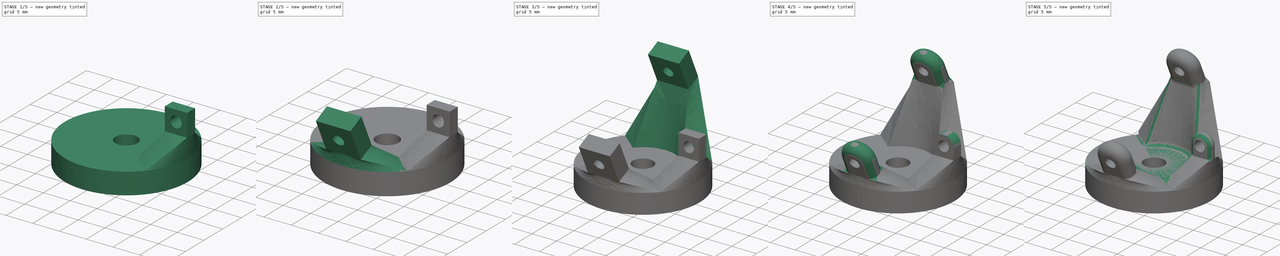
[diagram: build sequence overview — one tinted view per stage of 5, left to right]
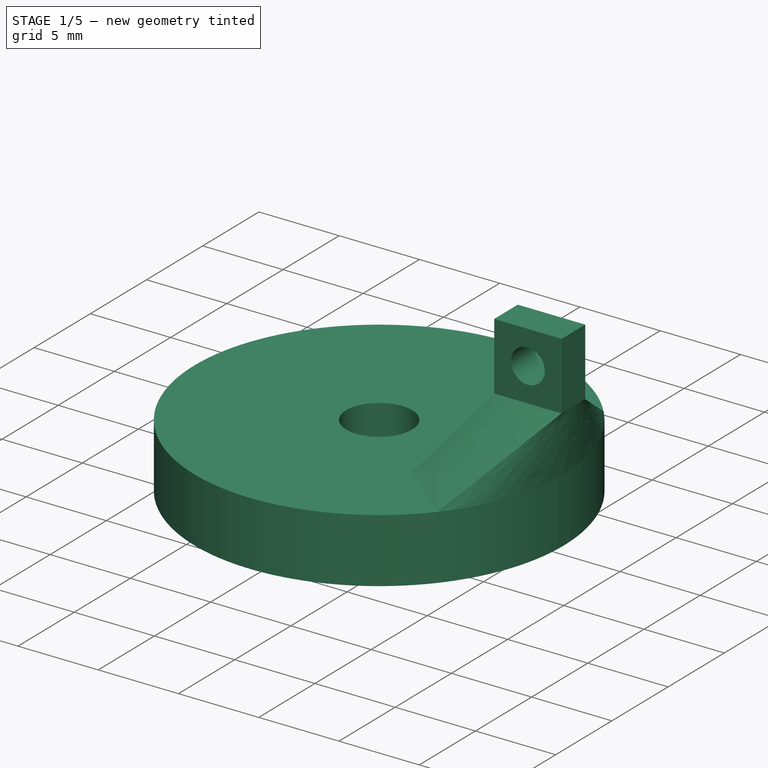
[diagram: stage 1 of 5 — iso view after this stage's code; geometry added in this stage tinted green]
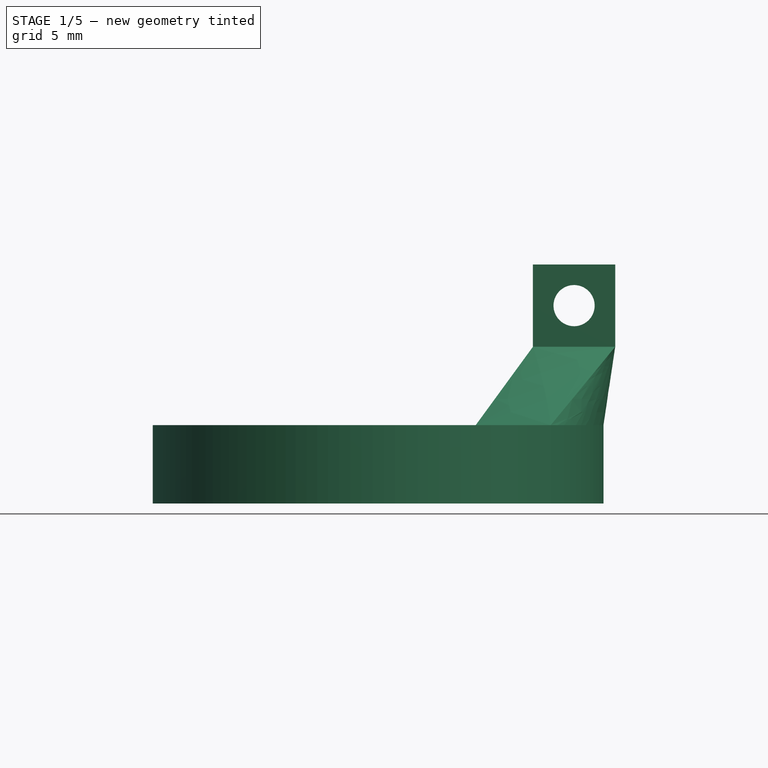
[diagram: stage 1 of 5 — front view after this stage's code; geometry added in this stage tinted green]
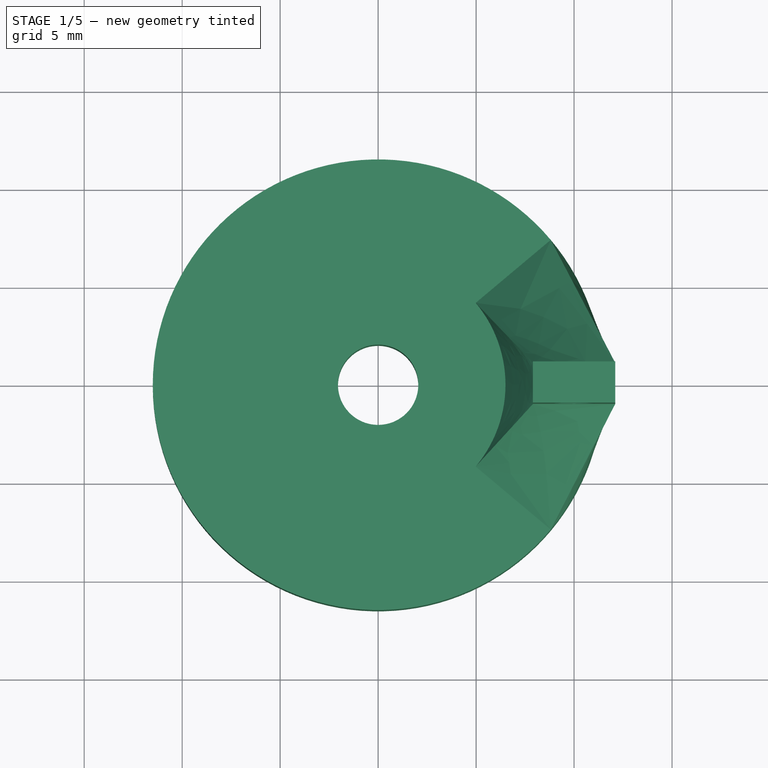
[diagram: stage 1 of 5 — top view after this stage's code; geometry added in this stage tinted green]
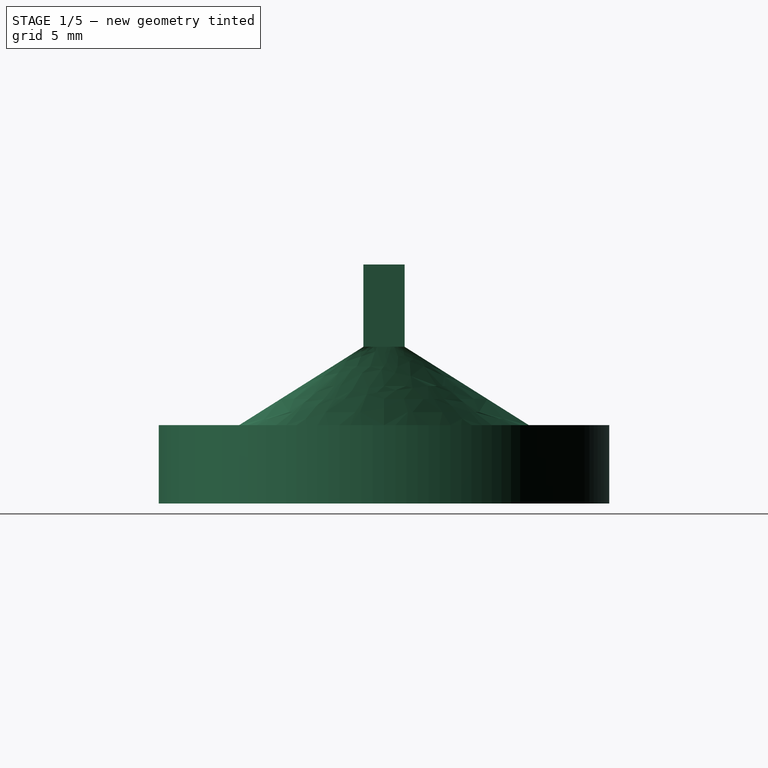
[diagram: stage 1 of 5 — right view after this stage's code; geometry added in this stage tinted green]
FCSTD DOCUMENT  (FreeCAD 1.0R39285 (Git))
Label: steering-brackets-v2
License: All rights reserved
LicenseURL: http://en.wikipedia.org/wiki/All_rights_reserved
objects: Sketcher::SketchObject×10, PartDesign::CoordinateSystem×6, PartDesign::Fillet×5, PartDesign::Pad×4, App::Link×3, PartDesign::AdditiveLoft×3, PartDesign::Pocket×3, App::VarSet×2, PartDesign::Body×1
note: 72 computed .brp shape members not serialized (recipe doc carries the construction recipe); baked Part::Feature solids carry a one-line shape summary decoded from their .brp
EXTERNAL_REF file=../wheels.FCStd obj=VarSet001
EXTERNAL_REF file=../wheels.FCStd obj=VarSet
EXTERNAL_REF file=../wheels.FCStd obj=Part

FEATURE [Sketcher::SketchObject] Sketch001  label="SteeringArmBaseSketch"
  ArcFitTolerance = 1e-06
  AttachmentSupport = -> [Pad]
  FullyConstrained = true
  MakeInternals = false
  MapMode = 5
  Placement = pos=(0,0,4) rot=(0,0,1;0rad)
  expr: Constraints[0] = <<Dimensions>>.SteeringArmBaseRadius
  expr: Constraints[10] = <<Dimensions>>.SteeringArmBaseRadius - <<Dimensions>>.SteeringArmBaseWidth
  expr: Constraints[9] = <<Dimensions>>.SteeringArmBaseWidth
  sketch-geometry (4):
    g0: ArcOfCircle CenterX=0 CenterY=8e-16 CenterZ=0 NormalX=0 NormalY=0 NormalZ=1 AngleXU=0 Radius=11.5 StartAngle=5.58506 EndAngle=6.98131
    g1: ArcOfCircle CenterX=0 CenterY=7e-16 CenterZ=0 NormalX=0 NormalY=0 NormalZ=1 AngleXU=0 Radius=6.5 StartAngle=5.58506 EndAngle=6.98131
    g2: LineSegment StartX=4.97931 StartY=4.1781 StartZ=0 EndX=8.80953 EndY=7.39204 EndZ=0
    g3: LineSegment StartX=4.97931 StartY=-4.1781 StartZ=0 EndX=8.80953 EndY=-7.39204 EndZ=0
  constraints (12):
    c: Radius(g0) = 11.5
    c: Symmetric(g0,g0,g-1)
    c: PointOnObject(g0,g-2)
    c: PointOnObject(g1,g-2)
    c: Symmetric(g1,g1,g-1)
    c: Coincident(g2,g1)
    c: Coincident(g2,g0)
    c: Coincident(g3,g1)
    c: Coincident(g3,g0)
    c: Distance(g1,g0) = 5
    c: Radius(g1) = 6.5
    c: Angle(g3,g2) = 1.39626
FEATURE [PartDesign::CoordinateSystem] Local_CS  label="LowerPivotArmTipLCS"
  AttacherType = Attacher::AttachEngine3D
  AttachmentOffset = pos=(0,-10,6.52831) rot=(1,0,0;0.436332rad)
  AttachmentSupport = -> [XY_Plane]
  MapMode = 5
  Placement = pos=(0,-10,6.52831) rot=(1,0,0;0.436332rad)
  expr: .AttachmentOffset.Base.y = -1 * <<Dimensions>>.PivotArmTipRadius
  expr: .AttachmentOffset.Base.z = <<Dimensions>>.LowerPivotArmLengthZ + <<Dimensions>>.HubThickness
  expr: .AttachmentOffset.Rotation.Angle = <<Dimensions>>.SteeringArmInclinationAngle
FEATURE [Sketcher::SketchObject] Sketch004  label="LowerPivotArmTipSketch"
  ArcFitTolerance = 1e-06
  AttachmentSupport = -> [Local_CS]
  FullyConstrained = true
  MakeInternals = false
  MapMode = 2
  Placement = pos=(0,-10,6.52831) rot=(1,0,0;0.436332rad)
  expr: Constraints[10] = <<Dimensions>>.PivotArmTipWidth
  expr: Constraints[9] = <<Dimensions>>.PivotArmTipLength
  sketch-geometry (5):
    g0: LineSegment StartX=-3.15 StartY=1.575 StartZ=0 EndX=-3.15 EndY=-1.575 EndZ=0
    g1: LineSegment StartX=-3.15 StartY=-1.575 StartZ=0 EndX=3.15 EndY=-1.575 EndZ=0
    g2: LineSegment StartX=3.15 StartY=-1.575 StartZ=0 EndX=3.15 EndY=1.575 EndZ=0
    g3: LineSegment StartX=3.15 StartY=1.575 StartZ=0 EndX=-3.15 EndY=1.575 EndZ=0
    g4: GeomPoint [constr] X=0 Y=0 Z=0
  constraints (12):
    c: Coincident(g0,g1)
    c: Coincident(g1,g2)
    c: Coincident(g2,g3)
    c: Coincident(g3,g0)
    c: Vertical(g0)
    c: Vertical(g2)
    c: Horizontal(g1)
    c: Horizontal(g3)
    c: Symmetric(g2,g0,g4)
    c: DistanceY(g2,g2) = 3.15
    c: DistanceX(g1,g1) = 6.3
    c: Coincident(g4,g-1)
FEATURE [PartDesign::CoordinateSystem] Local_CS001  label="UpperPivotArmTipLCS"
  AttacherType = Attacher::AttachEngine3D
  AttachmentOffset = pos=(0,10,15.8545) rot=(1,0,0;0.436332rad)
  AttachmentSupport = -> [XY_Plane]
  MapMode = 5
  Placement = pos=(0,10,15.8545) rot=(1,0,0;0.436332rad)
  expr: .AttachmentOffset.Base.y = <<Dimensions>>.PivotArmTipRadius
  expr: .AttachmentOffset.Base.z = <<Dimensions>>.UpperPivotArmLengthZ + <<Dimensions>>.HubThickness
  expr: .AttachmentOffset.Rotation.Angle = <<Dimensions>>.SteeringArmInclinationAngle
FEATURE [Sketcher::SketchObject] Sketch006  label="UpperPivotArmTipSketch"
  ArcFitTolerance = 1e-06
  AttachmentSupport = -> [Local_CS001]
  FullyConstrained = true
  MakeInternals = false
  MapMode = 2
  Placement = pos=(0,10,15.8545) rot=(1,0,0;0.436332rad)
  expr: Constraints[10] = <<Dimensions>>.PivotArmTipWidth
  expr: Constraints[9] = <<Dimensions>>.PivotArmTipLength
  sketch-geometry (5):
    g0: LineSegment StartX=-3.15 StartY=1.575 StartZ=0 EndX=-3.15 EndY=-1.575 EndZ=0
    g1: LineSegment StartX=-3.15 StartY=-1.575 StartZ=0 EndX=3.15 EndY=-1.575 EndZ=0
    g2: LineSegment StartX=3.15 StartY=-1.575 StartZ=0 EndX=3.15 EndY=1.575 EndZ=0
    g3: LineSegment StartX=3.15 StartY=1.575 StartZ=0 EndX=-3.15 EndY=1.575 EndZ=0
    g4: GeomPoint [constr] X=0 Y=0 Z=0
  constraints (12):
    c: Coincident(g0,g1)
    c: Coincident(g1,g2)
    c: Coincident(g2,g3)
    c: Coincident(g3,g0)
    c: Vertical(g0)
    c: Vertical(g2)
    c: Horizontal(g1)
    c: Horizontal(g3)
    c: Symmetric(g2,g0,g4)
    c: DistanceY(g0,g0) = 3.15
    c: DistanceX(g3,g3) = 6.3
    c: Coincident(g4,g-1)
FEATURE [PartDesign::CoordinateSystem] Local_CS002  label="SteeringArmTipLCS"
  AttacherType = Attacher::AttachEngine3D
  AttachmentOffset = pos=(10,0,8) rot=(0,0,1;0rad)
  AttachmentSupport = -> [XY_Plane]
  MapMode = 2
  Placement = pos=(10,0,8) rot=(0,0,1;0rad)
FEATURE [Sketcher::SketchObject] Sketch002  label="SteeringArmTipSketch"
  ArcFitTolerance = 1e-06
  AttachmentSupport = -> [Local_CS002]
  FullyConstrained = true
  MakeInternals = false
  MapMode = 2
  Placement = pos=(10,0,8) rot=(0,0,1;0rad)
  expr: Constraints[10] = <<Dimensions>>.SteeringArmTipLength
  expr: Constraints[9] = <<Dimensions>>.SteeringArmTipWidth
  sketch-geometry (5):
    g0: LineSegment StartX=2.1 StartY=-1.05 StartZ=0 EndX=-2.1 EndY=-1.05 EndZ=0
    g1: LineSegment StartX=-2.1 StartY=-1.05 StartZ=0 EndX=-2.1 EndY=1.05 EndZ=0
    g2: LineSegment StartX=-2.1 StartY=1.05 StartZ=0 EndX=2.1 EndY=1.05 EndZ=0
    g3: LineSegment StartX=2.1 StartY=1.05 StartZ=0 EndX=2.1 EndY=-1.05 EndZ=0
    g4: GeomPoint [constr] X=0 Y=0 Z=0
  constraints (12):
    c: Coincident(g0,g1)
    c: Coincident(g1,g2)
    c: Coincident(g2,g3)
    c: Coincident(g3,g0)
    c: Horizontal(g0)
    c: Horizontal(g2)
    c: Vertical(g1)
    c: Vertical(g3)
    c: Symmetric(g2,g0,g4)
    c: DistanceX(g0,g0) = 4.2
    c: DistanceY(g3,g3) = 2.1
    c: Coincident(g4,g-1)
FEATURE [PartDesign::AdditiveLoft] AdditiveLoft  label="SteeringArmLoft"
  Closed = false
  Profile = -> Sketch001
  Refine = true
  Ruled = false
  Sections = -> [Sketch002]
  Suppressed = false
FEATURE [Sketcher::SketchObject] Sketch003  label="LowerPivotArmBaseSketch"
  ArcFitTolerance = 1e-06
  AttachmentSupport = -> [AdditiveLoft]
  FullyConstrained = true
  MakeInternals = false
  MapMode = 5
  Placement = pos=(0,0,4) rot=(0,0,1;0rad)
  expr: Constraints[10] = <<Dimensions>>.PivotArmBaseRadius
  expr: Constraints[11] = <<Dimensions>>.PivotArmBaseRadius - <<Dimensions>>.PivotArmBaseWidth
  expr: Constraints[8] = <<Dimensions>>.PivotArmBaseWidth
  sketch-geometry (4):
    g0: ArcOfCircle CenterX=1.5e-15 CenterY=0 CenterZ=0 NormalX=0 NormalY=0 NormalZ=1 AngleXU=0 Radius=11.5 StartAngle=3.83972 EndAngle=5.58506
    g1: ArcOfCircle CenterX=3e-16 CenterY=0 CenterZ=0 NormalX=0 NormalY=0 NormalZ=1 AngleXU=0 Radius=6.5 StartAngle=3.83972 EndAngle=5.58506
    g2: LineSegment StartX=-8.80953 StartY=-7.39203 StartZ=0 EndX=-4.97931 EndY=-4.17809 EndZ=0
    g3: LineSegment StartX=4.97931 StartY=-4.17809 StartZ=0 EndX=8.80953 EndY=-7.39203 EndZ=0
  constraints (12):
    c: Symmetric(g0,g0,g-2)
    c: PointOnObject(g0,g-1)
    c: PointOnObject(g1,g-1)
    c: Symmetric(g1,g1,g-2)
    c: Coincident(g2,g0)
    c: Coincident(g2,g1)
    c: Coincident(g3,g1)
    c: Coincident(g3,g0)
    c: Distance(g0,g1) = 5
    c: Angle(g2,g3) = 1.74533
    c: Radius(g0) = 11.5
    c: Radius(g1) = 6.5
FEATURE [App::Link] Link001  label="WheelParts"
  LinkedObject = -> <external ../wheels.FCStd>#VarSet
FEATURE [App::VarSet] VarSet001  label="Parts"
  BodyMountingBoltSize = 2
  TieRodMountingBoltSize = 2
FEATURE [App::Link] Link002  label="WheelModel"
  LinkPlacement = pos=(0,0,0) rot=(1,0,0;1.5708rad)
  LinkedObject = -> <external ../wheels.FCStd>#Part
  Placement = pos=(0,0,0) rot=(1,0,0;1.5708rad)
FEATURE [PartDesign::Pad] Pad001  label="SteeringArmMountPad"
  BaseFeature = -> AdditiveLoft
  Direction = (0,0,1)
  Length = 4.2
  Length2 = 10
  Profile = -> Sketch002
  ReferenceAxis = -> Sketch002 [N_Axis]
  Refine = true
  Suppressed = false
  Type = 0
  expr: Length = <<Dimensions>>.SteeringArmTipWidth
FEATURE [PartDesign::CoordinateSystem] Local_CS003  label="SteeringArmBoltHoleLCS"
  AttacherType = Attacher::AttachEngine3D
  AttachmentSupport = -> [Pad001]
  MapMode = 1
  Placement = pos=(7.9,-1.05,8) rot=(1,0,0;1.5708rad)
FEATURE [Sketcher::SketchObject] Sketch007  label="SteeringArmBoltHoleSketch"
  ArcFitTolerance = 1e-06
  AttachmentSupport = -> [Local_CS003]
  FullyConstrained = true
  MakeInternals = false
  MapMode = 2
  Placement = pos=(7.9,-1.05,8) rot=(1,0,0;1.5708rad)
  expr: Constraints[0] = <<Dimensions>>.TieRodMountingBoltHoleDiameter
  expr: Constraints[1] = <<Dimensions>>.SteeringArmTipWidth / 2
  expr: Constraints[2] = <<Dimensions>>.SteeringArmTipWidth / 2
  sketch-geometry (1):
    g0: Circle CenterX=2.1 CenterY=2.1 CenterZ=0 NormalX=0 NormalY=0 NormalZ=1 AngleXU=0 Radius=1.05
  constraints (3):
    c: Diameter(g0) = 2.1
    c: DistanceY(g-1,g0) = 2.1
    c: DistanceX(g-1,g0) = 2.1
FEATURE [PartDesign::Pocket] Pocket  label="SteeringArmBoltHole"
  BaseFeature = -> Pad001
  Direction = (0,1,-2e-16)
  Length = 2.1
  Length2 = 5
  Profile = -> Sketch007
  ReferenceAxis = -> Sketch007 [N_Axis]
  Refine = true
  Suppressed = false
  Type = 0
  expr: Length = <<Dimensions>>.SteeringArmTipLength
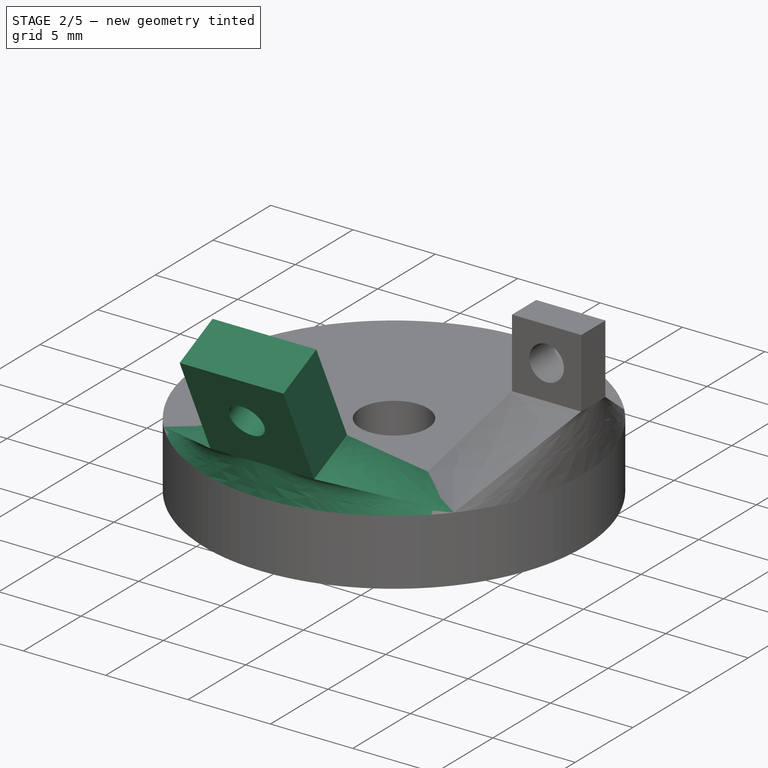
[diagram: stage 2 of 5 — iso view after this stage's code; geometry added in this stage tinted green]
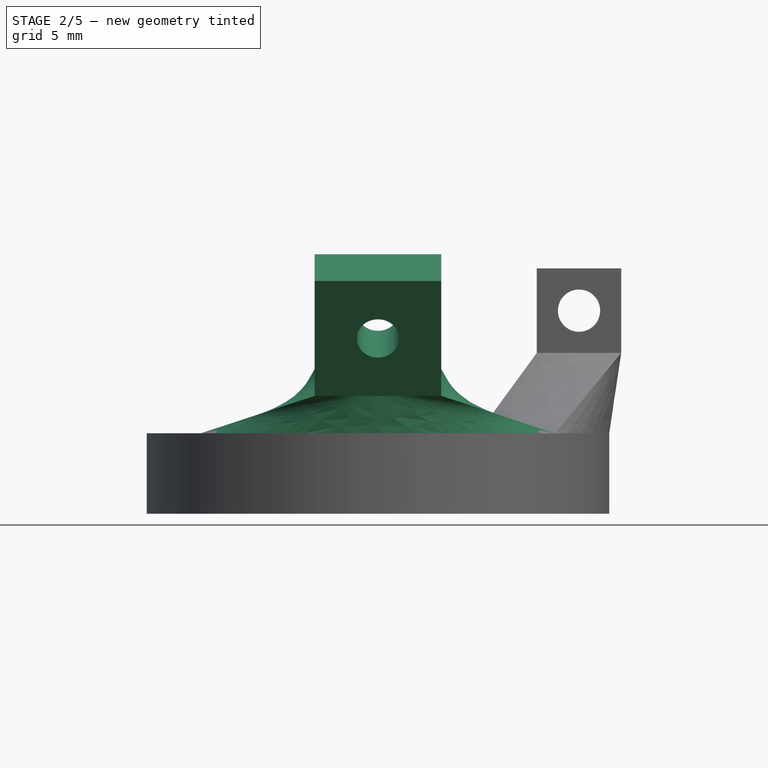
[diagram: stage 2 of 5 — front view after this stage's code; geometry added in this stage tinted green]
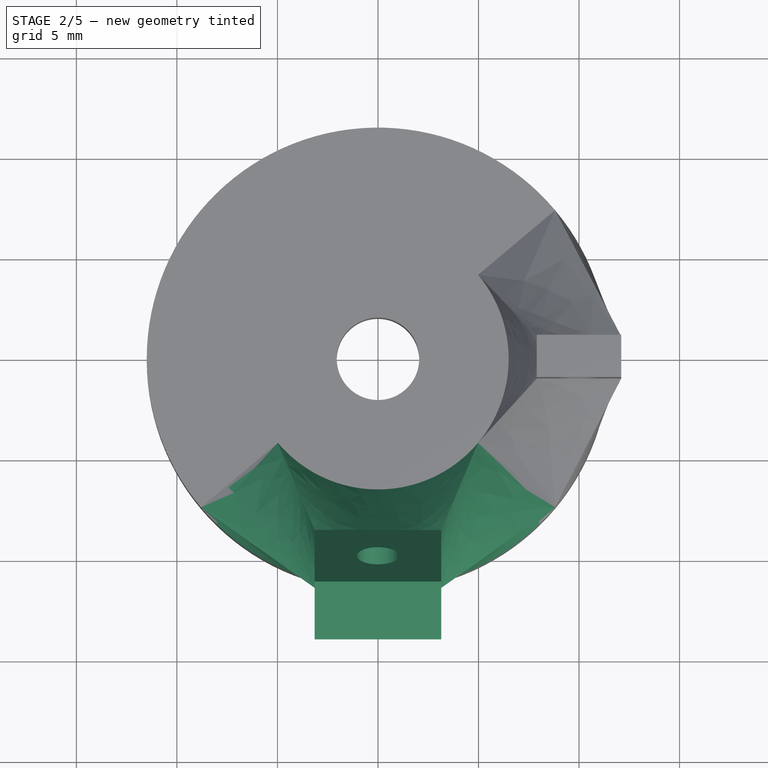
[diagram: stage 2 of 5 — top view after this stage's code; geometry added in this stage tinted green]
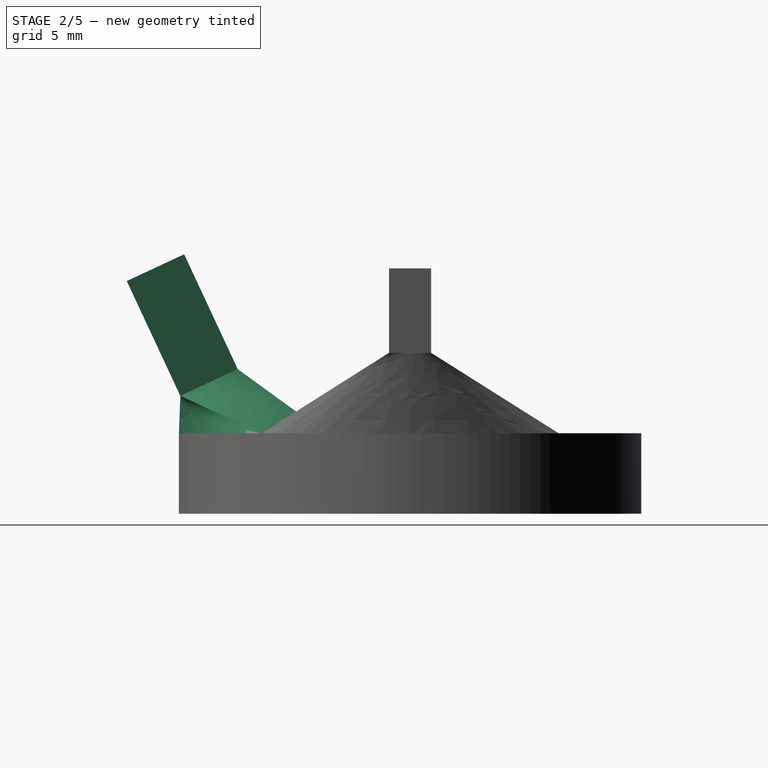
[diagram: stage 2 of 5 — right view after this stage's code; geometry added in this stage tinted green]
FEATURE [PartDesign::AdditiveLoft] AdditiveLoft001  label="LowerPivotArmLoft"
  BaseFeature = -> Pocket
  Closed = false
  Profile = -> Sketch003
  Refine = true
  Ruled = false
  Sections = -> [Sketch004]
  Suppressed = false
FEATURE [Sketcher::SketchObject] Sketch005  label="UpperPivotArmBaseSketch"
  ArcFitTolerance = 1e-06
  AttachmentSupport = -> [AdditiveLoft001]
  FullyConstrained = true
  MakeInternals = false
  MapMode = 5
  Placement = pos=(0,0,4) rot=(0,0,1;0rad)
  expr: Constraints[10] = <<Dimensions>>.PivotArmBaseRadius
  expr: Constraints[11] = <<Dimensions>>.PivotArmBaseRadius - <<Dimensions>>.PivotArmBaseWidth
  expr: Constraints[8] = <<Dimensions>>.PivotArmBaseWidth
  sketch-geometry (4):
    g0: ArcOfCircle CenterX=7e-16 CenterY=0 CenterZ=0 NormalX=0 NormalY=0 NormalZ=1 AngleXU=0 Radius=11.5 StartAngle=0.69813 EndAngle=2.44346
    g1: ArcOfCircle CenterX=6e-16 CenterY=0 CenterZ=0 NormalX=0 NormalY=0 NormalZ=1 AngleXU=0 Radius=6.5 StartAngle=0.698129 EndAngle=2.44346
    g2: LineSegment StartX=-4.9793 StartY=4.17811 StartZ=0 EndX=-8.80952 EndY=7.39204 EndZ=0
    g3: LineSegment StartX=4.9793 StartY=4.17811 StartZ=0 EndX=8.80952 EndY=7.39204 EndZ=0
  constraints (12):
    c: PointOnObject(g0,g-1)
    c: PointOnObject(g1,g-1)
    c: Symmetric(g0,g0,g-2)
    c: Symmetric(g1,g1,g-2)
    c: Coincident(g2,g1)
    c: Coincident(g2,g0)
    c: Coincident(g3,g1)
    c: Coincident(g3,g0)
    c: Distance(g1,g0) = 5
    c: Angle(g3,g2) = 1.74533
    c: Radius(g0) = 11.5
    c: Radius(g1) = 6.5
FEATURE [PartDesign::Pad] Pad002  label="LowerPivotArmMountPad"
  BaseFeature = -> AdditiveLoft001
  Direction = (0,-0.422618,0.906308)
  Length = 6.3
  Length2 = 10
  Profile = -> Sketch004
  ReferenceAxis = -> Sketch004 [N_Axis]
  Refine = true
  Suppressed = false
  Type = 0
  expr: Length = <<Dimensions>>.PivotArmTipWidth
FEATURE [PartDesign::CoordinateSystem] Local_CS004  label="LowerPivotArmBoltHoleLCS"
  AttacherType = Attacher::AttachEngine3D
  AttachmentSupport = -> [Pad002]
  MapMode = 6
  Placement = pos=(-3.15,-11.4274,5.86268) rot=(1,0,0;2.00713rad)
FEATURE [Sketcher::SketchObject] Sketch008  label="LowerPivotArmBoltHoleSketch"
  ArcFitTolerance = 1e-06
  AttachmentSupport = -> [Local_CS004]
  FullyConstrained = true
  MakeInternals = false
  MapMode = 2
  Placement = pos=(-3.15,-11.4274,5.86268) rot=(1,0,0;2.00713rad)
  expr: Constraints[0] = <<Dimensions>>.BodyMountingBoltHoleDiameter
  expr: Constraints[1] = <<Dimensions>>.PivotArmTipWidth / 2
  expr: Constraints[2] = <<Dimensions>>.PivotArmTipWidth / 2
  sketch-geometry (1):
    g0: Circle CenterX=3.15 CenterY=3.15 CenterZ=0 NormalX=0 NormalY=0 NormalZ=1 AngleXU=0 Radius=1.05
  constraints (3):
    c: Diameter(g0) = 2.1
    c: DistanceY(g-1,g0) = 3.15
    c: DistanceX(g-1,g0) = 3.15
FEATURE [PartDesign::Pocket] Pocket001  label="LowerPivotArmBoltHole"
  BaseFeature = -> Pad002
  Direction = (0,0.906308,0.422618)
  Length = 3.15
  Length2 = 5
  Profile = -> Sketch008
  ReferenceAxis = -> Sketch008 [N_Axis]
  Refine = true
  Suppressed = false
  Type = 0
  expr: Length = <<Dimensions>>.PivotArmTipLength
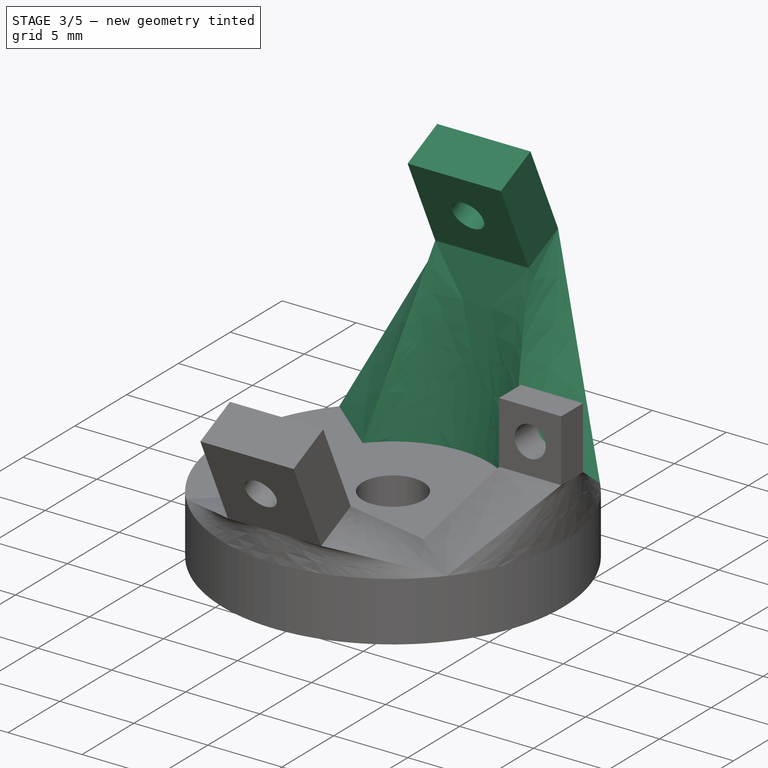
[diagram: stage 3 of 5 — iso view after this stage's code; geometry added in this stage tinted green]
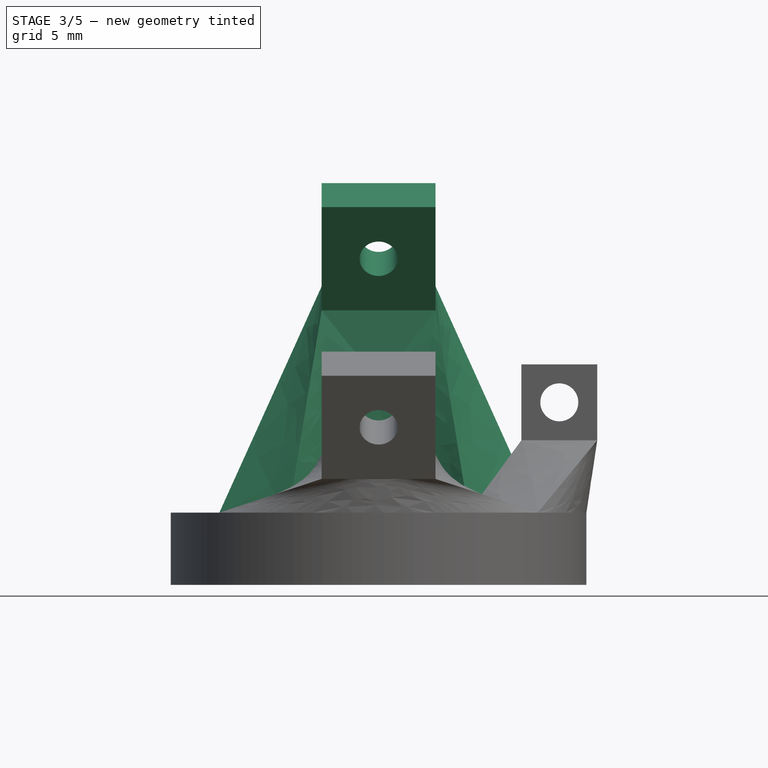
[diagram: stage 3 of 5 — front view after this stage's code; geometry added in this stage tinted green]
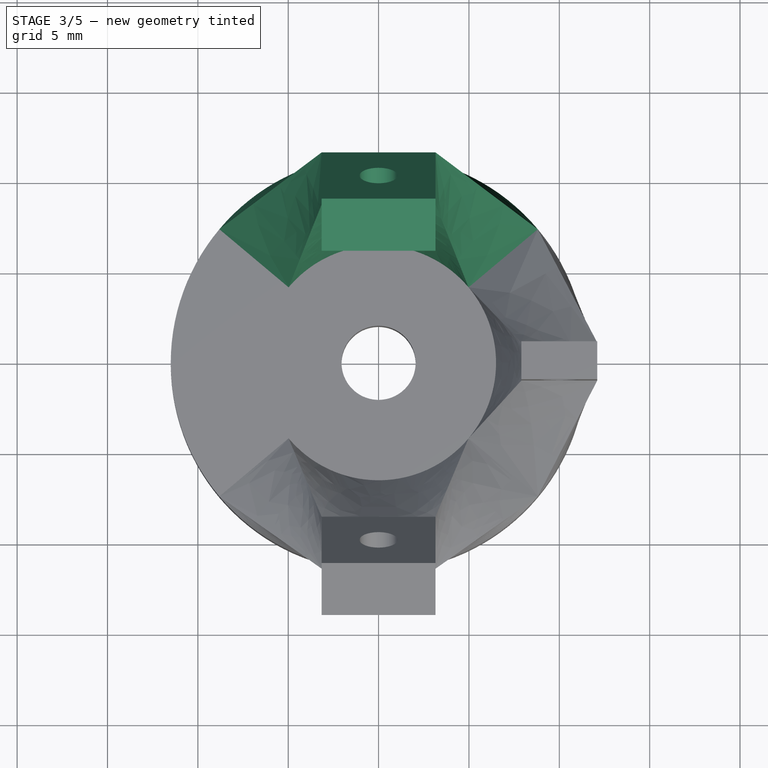
[diagram: stage 3 of 5 — top view after this stage's code; geometry added in this stage tinted green]
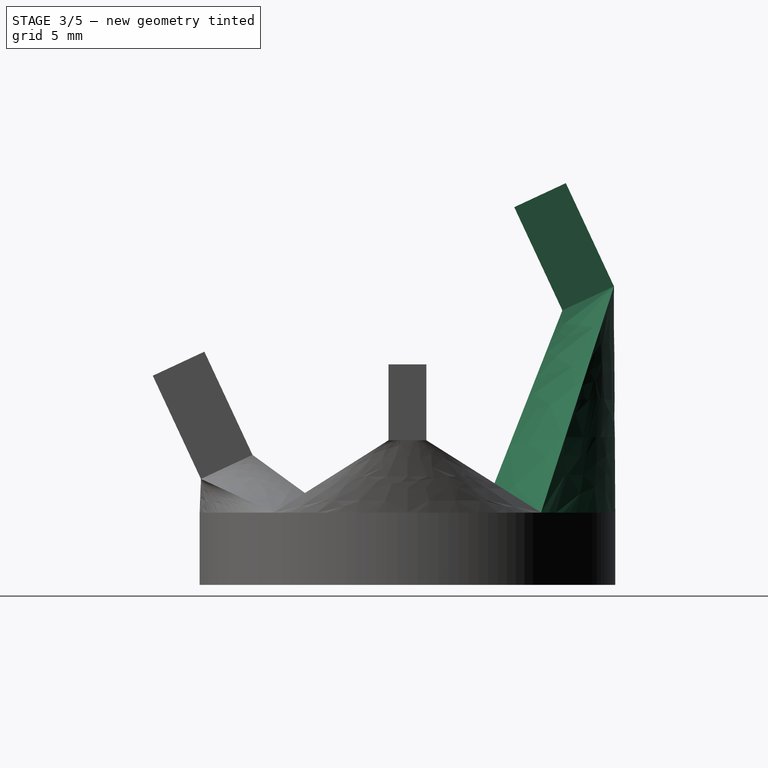
[diagram: stage 3 of 5 — right view after this stage's code; geometry added in this stage tinted green]
FEATURE [PartDesign::AdditiveLoft] AdditiveLoft002  label="UpperPivotArmLoft"
  BaseFeature = -> Pocket001
  Closed = false
  Profile = -> Sketch005
  Refine = true
  Ruled = false
  Sections = -> [Sketch006]
  Suppressed = false
FEATURE [PartDesign::Pad] Pad003  label="UpperPivotArmMountPad"
  BaseFeature = -> AdditiveLoft002
  Direction = (0,-0.422618,0.906308)
  Length = 6.3
  Length2 = 10
  Profile = -> Sketch006
  ReferenceAxis = -> Sketch006 [N_Axis]
  Refine = true
  Suppressed = false
  Type = 0
  expr: Length = <<Dimensions>>.PivotArmTipWidth
FEATURE [PartDesign::CoordinateSystem] Local_CS005  label="UpperPivotArmBoltHoleLCS"
  AttacherType = Attacher::AttachEngine3D
  AttachmentSupport = -> [Pad003]
  MapMode = 6
  Placement = pos=(-3.15,8.57257,15.1888) rot=(1,0,0;2.00713rad)
FEATURE [Sketcher::SketchObject] Sketch009  label="UpperPivotArmBoltHoleSketch"
  ArcFitTolerance = 1e-06
  AttachmentSupport = -> [Local_CS005]
  FullyConstrained = true
  MakeInternals = false
  MapMode = 2
  Placement = pos=(-3.15,8.57257,15.1888) rot=(1,0,0;2.00713rad)
  expr: Constraints[0] = <<Dimensions>>.BodyMountingBoltHoleDiameter
  expr: Constraints[1] = <<Dimensions>>.PivotArmTipWidth / 2
  expr: Constraints[2] = <<Dimensions>>.PivotArmTipWidth / 2
  sketch-geometry (1):
    g0: Circle CenterX=3.15 CenterY=3.15 CenterZ=0 NormalX=0 NormalY=0 NormalZ=1 AngleXU=0 Radius=1.05
  constraints (3):
    c: Diameter(g0) = 2.1
    c: DistanceX(g-1,g0) = 3.15
    c: DistanceY(g-1,g0) = 3.15
FEATURE [PartDesign::Pocket] Pocket002  label="UpperPivotArmBoltHole"
  BaseFeature = -> Pad003
  Direction = (0,0.906308,0.422618)
  Length = 3.15
  Length2 = 5
  Profile = -> Sketch009
  ReferenceAxis = -> Sketch009 [N_Axis]
  Refine = true
  Suppressed = false
  Type = 0
  expr: Length = <<Dimensions>>.PivotArmTipLength
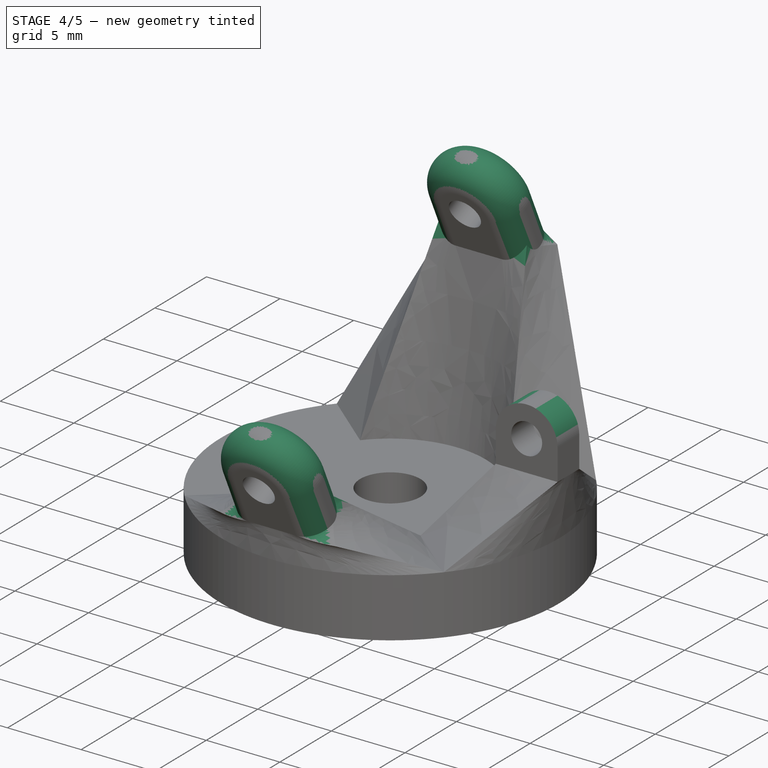
[diagram: stage 4 of 5 — iso view after this stage's code; geometry added in this stage tinted green]
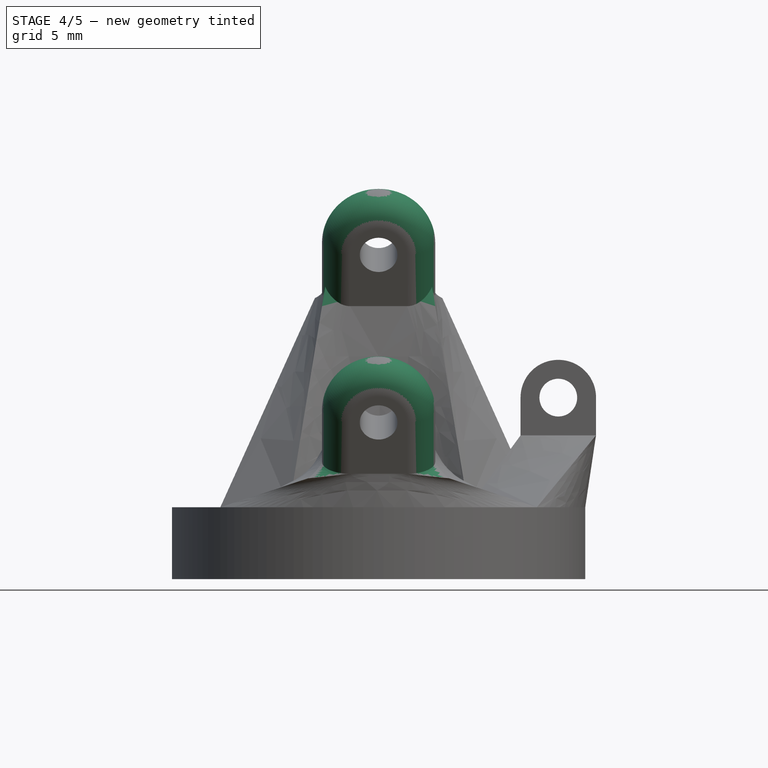
[diagram: stage 4 of 5 — front view after this stage's code; geometry added in this stage tinted green]
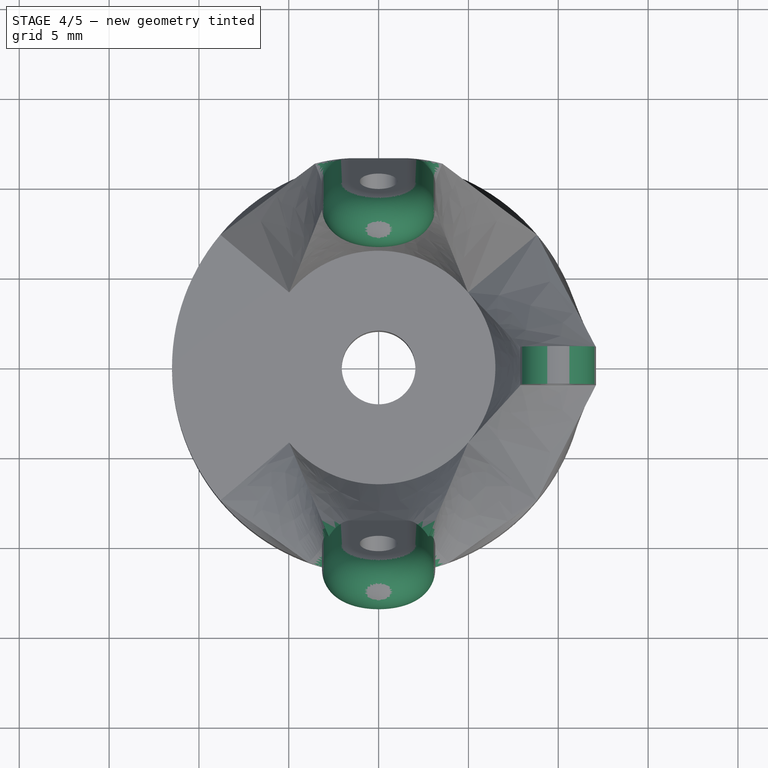
[diagram: stage 4 of 5 — top view after this stage's code; geometry added in this stage tinted green]
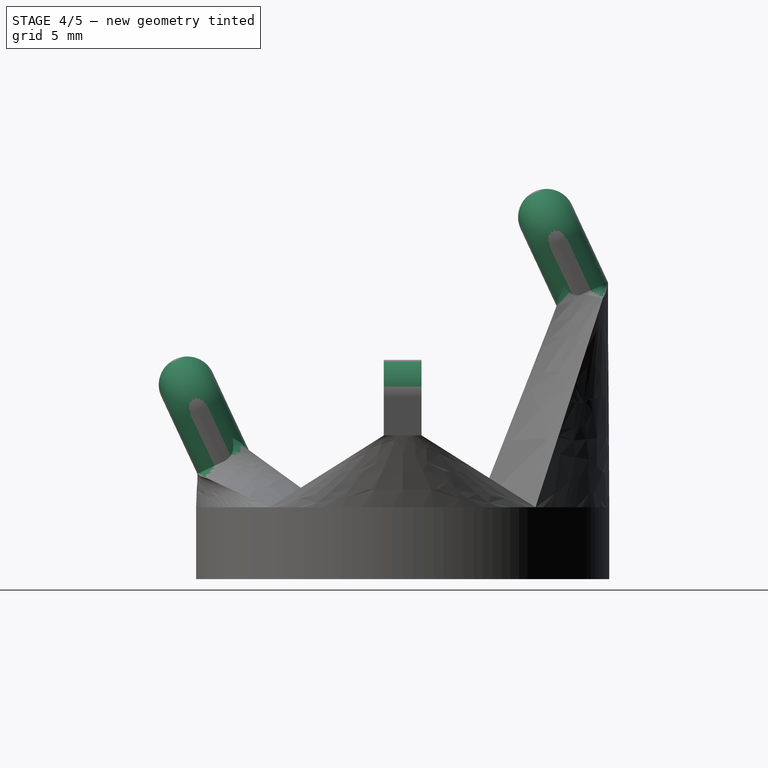
[diagram: stage 4 of 5 — right view after this stage's code; geometry added in this stage tinted green]
FEATURE [PartDesign::Fillet] Fillet  label="PivotArmTipCornerFillet"
  Base = -> Pocket002 [Edge72,Edge68,Edge63,Edge61]
  BaseFeature = -> Pocket002
  Radius = 3.14
  Refine = true
  SupportTransform = false
  Suppressed = false
  UseAllEdges = false
  expr: Radius = <<Dimensions>>.PivotArmTipWidth / 2 - 0.01 mm
FEATURE [PartDesign::Fillet] Fillet001  label="SteeringArmTipCornerFillet"
  Base = -> Fillet [Edge79,Edge60]
  BaseFeature = -> Fillet
  Radius = 2.09
  Refine = true
  SupportTransform = false
  Suppressed = false
  UseAllEdges = false
  expr: Radius = <<Dimensions>>.SteeringArmTipWidth / 2 - 0.01 mm
FEATURE [PartDesign::Fillet] Fillet002  label="PivotArmTipEdgeFillet"
  Base = -> Fillet001 [Face30,Face39,Face34,Face32]
  BaseFeature = -> Fillet001
  Radius = 1.565
  Refine = true
  SupportTransform = false
  Suppressed = false
  UseAllEdges = false
  expr: Radius = <<Dimensions>>.PivotArmTipLength / 2 - 0.01 mm
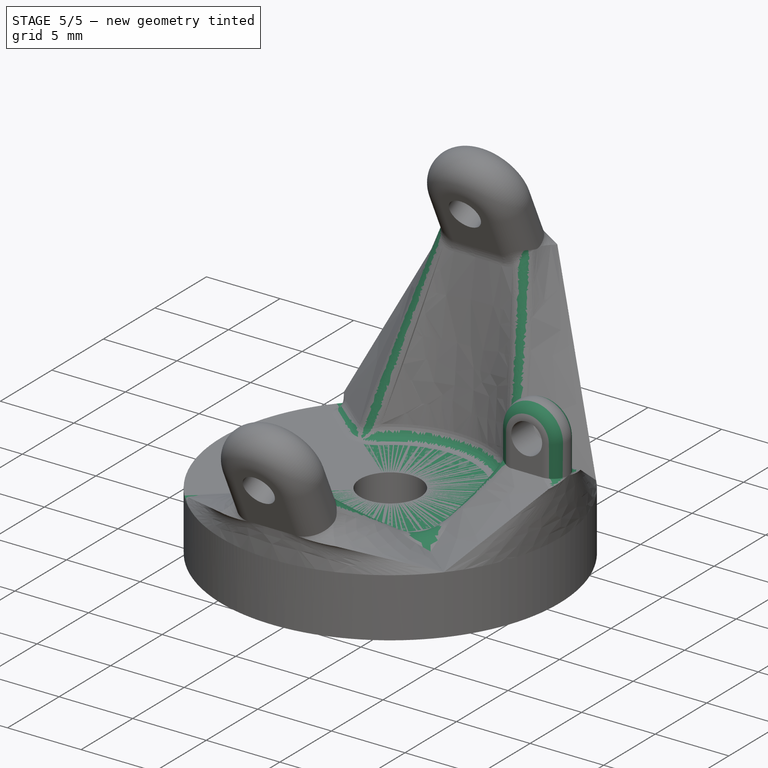
[diagram: stage 5 of 5 — iso view after this stage's code; geometry added in this stage tinted green]
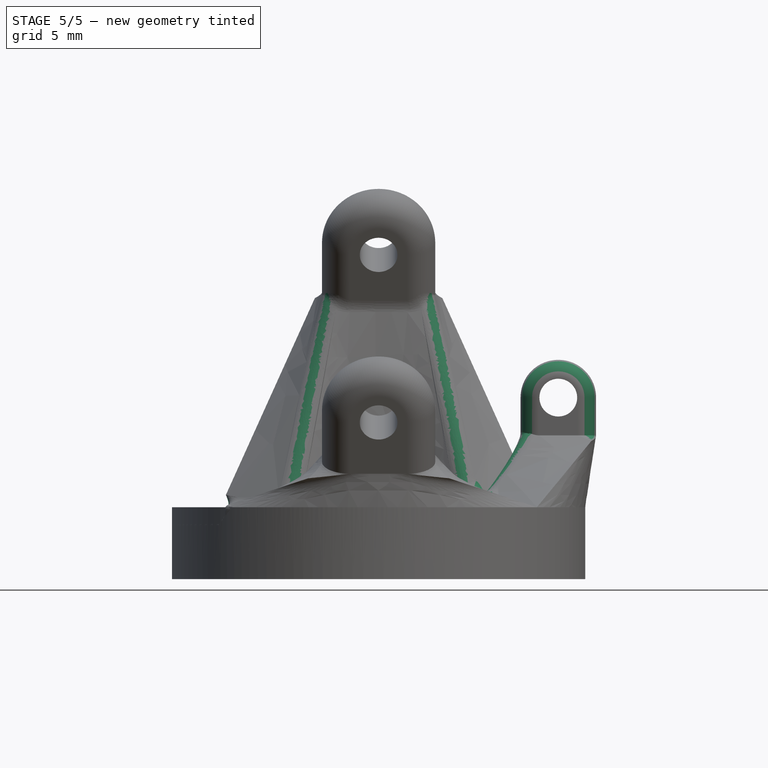
[diagram: stage 5 of 5 — front view after this stage's code; geometry added in this stage tinted green]
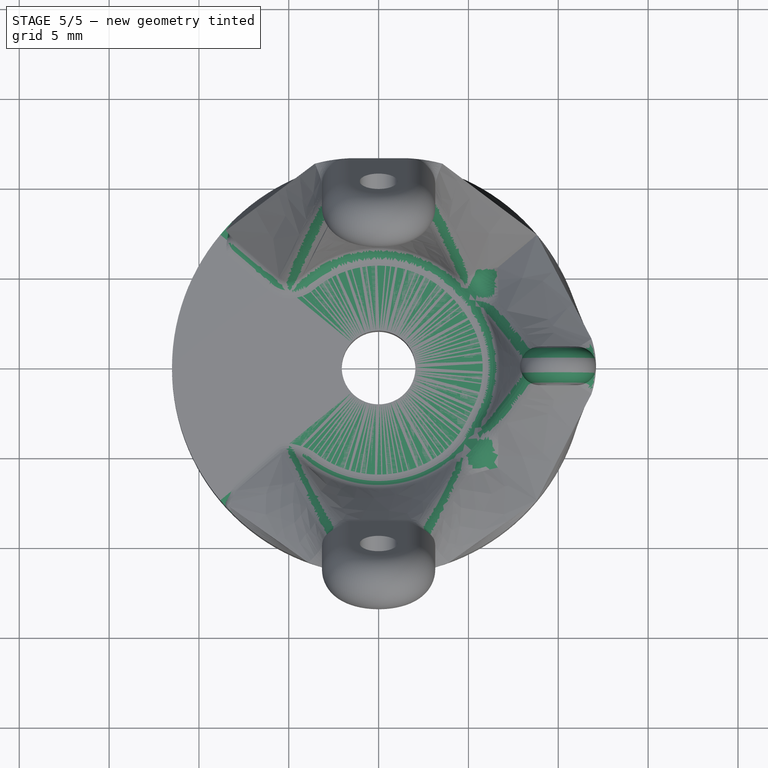
[diagram: stage 5 of 5 — top view after this stage's code; geometry added in this stage tinted green]
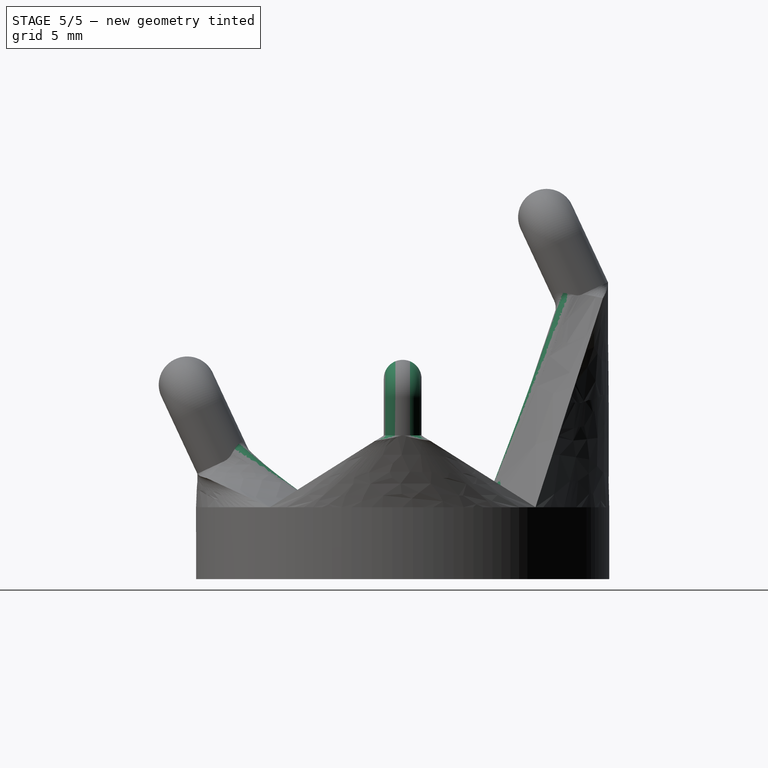
[diagram: stage 5 of 5 — right view after this stage's code; geometry added in this stage tinted green]
FEATURE [Sketcher::SketchObject] Sketch  label="WheelHubSketch"
  ArcFitTolerance = 0
  AttachmentSupport = -> [XY_Plane]
  FullyConstrained = true
  MakeInternals = false
  MapMode = 5
  expr: Constraints[1] = <<Dimensions>>.HubDiameter
  expr: Constraints[3] = <<Dimensions>>.AxleHoleDiameter
  sketch-geometry (2):
    g0: Circle CenterX=0 CenterY=0 CenterZ=0 NormalX=0 NormalY=0 NormalZ=1 AngleXU=0 Radius=11.5
    g1: Circle CenterX=0 CenterY=0 CenterZ=0 NormalX=0 NormalY=0 NormalZ=1 AngleXU=0 Radius=2.05
  constraints (4):
    c: Coincident(g0,g-1)
    c: Diameter(g0) = 23
    c: Coincident(g1,g0)
    c: Diameter(g1) = 4.1
FEATURE [App::Link] Link  label="WheelDimensions"
  LinkedObject = -> <external ../wheels.FCStd>#VarSet001
FEATURE [App::VarSet] VarSet  label="Dimensions"
  AxleHoleDiameter = 4.1
  BodyMountingBoltHoleDiameter = 2.1
  HubDiameter = 23
  HubThickness = 4
  LowerPivotArmLengthZ = 2.52831
  PivotArmBaseRadius = 11.5
  PivotArmBaseWidth = 5
  PivotArmTipCalculatedLength = 2.85487
  PivotArmTipCalculatedWidth = 1.33125
  PivotArmTipFarEdgeRadius = 11.4274
  PivotArmTipInnerEdgeRadius = 8.57257
  PivotArmTipLength = 3.15
  PivotArmTipOuterCornerOffset = 5.70974
  PivotArmTipOuterCornerRadius = 11.2351
  PivotArmTipRadius = 10
  PivotArmTipWidth = 6.3
  SteeringArmBaseRadius = 11.5
  SteeringArmBaseWidth = 5
  SteeringArmInclinationAngle = 25
  SteeringArmTipLength = 2.1
  SteeringArmTipWidth = 4.2
  TieRodMountingBoltHoleDiameter = 2.1
  UpperPivotArmLengthZ = 11.8545
  expr: AxleHoleDiameter = <<WheelDimensions>>.AxleHoleDiameter
  expr: BodyMountingBoltHoleDiameter = <<Parts>>.BodyMountingBoltSize + 0.1 mm
  expr: HubDiameter = <<WheelDimensions>>.InnerDiameter / 2
  expr: LowerPivotArmLengthZ = (<<WheelDimensions>>.OuterDiameter / 2 - PivotArmTipRadius) * sin(SteeringArmInclinationAngle) / sin(90 deg - SteeringArmInclinationAngle) - HubThickness
  expr: PivotArmBaseRadius = HubDiameter / 2
  expr: PivotArmTipCalculatedLength = PivotArmTipLength * sin(90 deg - SteeringArmInclinationAngle)
  expr: PivotArmTipCalculatedWidth = PivotArmTipLength * sin(SteeringArmInclinationAngle)
  expr: PivotArmTipFarEdgeRadius = PivotArmTipRadius + PivotArmTipCalculatedLength / 2
  expr: PivotArmTipInnerEdgeRadius = PivotArmTipRadius - PivotArmTipCalculatedLength / 2
  expr: PivotArmTipLength = PivotArmTipWidth / 2
  expr: PivotArmTipOuterCornerOffset = PivotArmTipWidth * sin(90 deg - SteeringArmInclinationAngle)
  expr: PivotArmTipOuterCornerRadius = PivotArmTipInnerEdgeRadius + PivotArmTipWidth * sin(SteeringArmInclinationAngle)
  expr: PivotArmTipWidth = TieRodMountingBoltHoleDiameter * 3
  expr: SteeringArmBaseRadius = HubDiameter / 2
  expr: SteeringArmTipLength = SteeringArmTipWidth / 2
  expr: SteeringArmTipWidth = BodyMountingBoltHoleDiameter * 2
  expr: TieRodMountingBoltHoleDiameter = <<Parts>>.TieRodMountingBoltSize + 0.1 mm
  expr: UpperPivotArmLengthZ = (<<WheelDimensions>>.OuterDiameter / 2 + PivotArmTipRadius) * sin(SteeringArmInclinationAngle) / sin(90 deg - SteeringArmInclinationAngle) - HubThickness
FEATURE [PartDesign::Pad] Pad  label="WheelHubPad"
  Direction = (0,0,1)
  Length = 4
  Length2 = 10
  Profile = -> Sketch
  ReferenceAxis = -> Sketch [N_Axis]
  Refine = true
  Suppressed = false
  Type = 0
  expr: Length = <<Dimensions>>.HubThickness
FEATURE [PartDesign::Fillet] Fillet003  label="SteeringArmTipEdgeFillet"
  Base = -> Fillet002 [Face34,Face31]
  BaseFeature = -> Fillet002
  Radius = 1.04
  Refine = true
  SupportTransform = false
  Suppressed = false
  UseAllEdges = false
  expr: Radius = <<Dimensions>>.SteeringArmTipLength / 2 - 0.01 mm
FEATURE [PartDesign::Fillet] Fillet004  label="ArmInnerSmoothingFillet"
  Base = -> Fillet003 [Face23,Face5,Face31,Edge55,Edge53,Edge54]
  BaseFeature = -> Fillet003
  Radius = 1
  Refine = true
  SupportTransform = false
  Suppressed = false
  UseAllEdges = false
FEATURE [PartDesign::Body] Body  label="SteeringBracketBody"
  AllowCompound = false
  Group = -> [Sketch,Pad,Sketch001,Local_CS002,Sketch002,AdditiveLoft,Pad001,Local_CS003,Sketch007,Pocket,Sketch003,Local_CS,Sketch004,AdditiveLoft001,Pad002,Local_CS004,Sketch008,Pocket001,Sketch005,Local_CS001,Sketch006,AdditiveLoft002,Pad003,Local_CS005,Sketch009,Pocket002,Fillet,Fillet001,Fillet002,Fillet003,Fillet004]
  Origin = -> Origin
  Tip = -> Fillet004
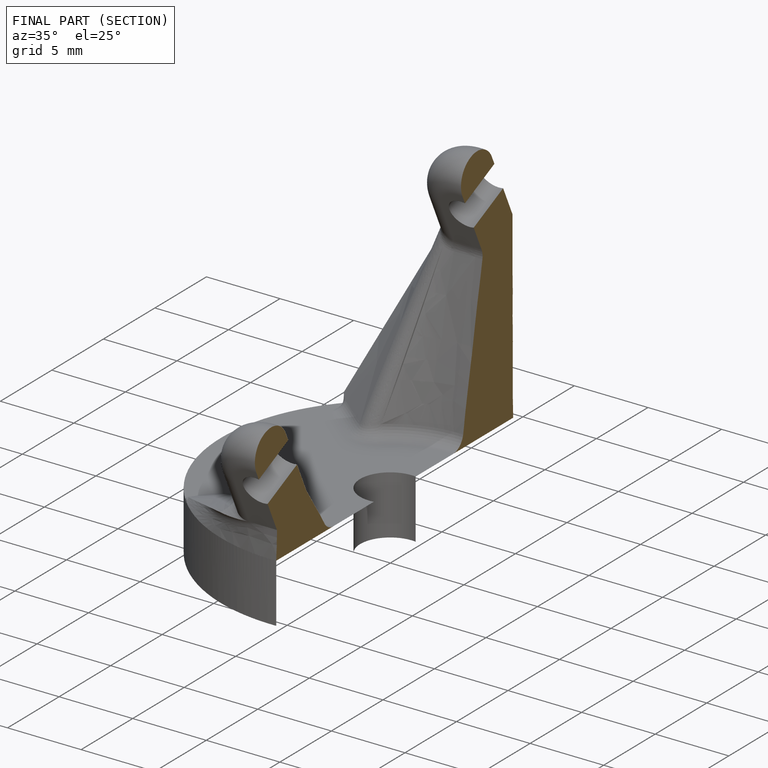
[diagram: finished part — half-section view (interior)]
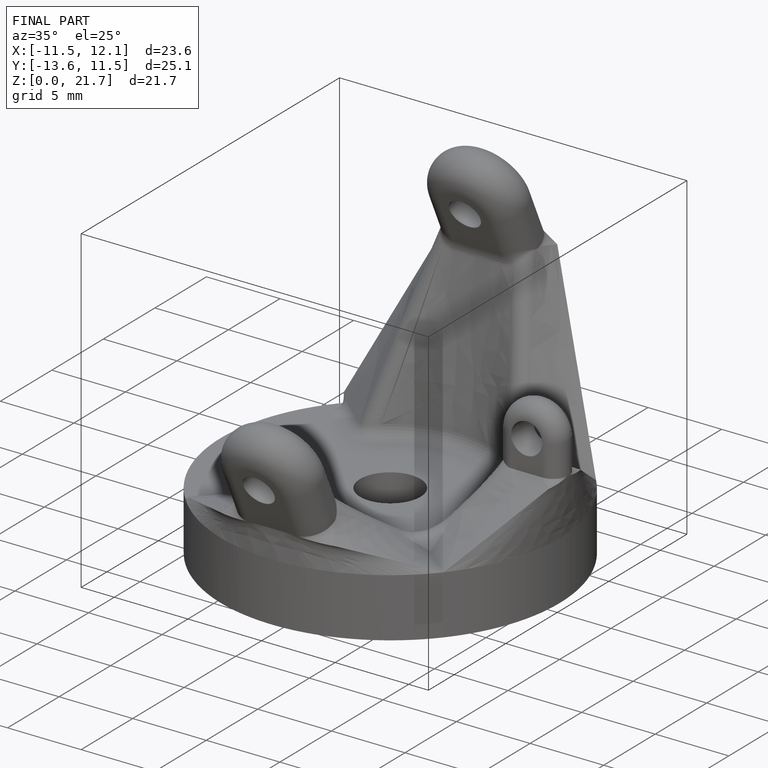
[diagram: finished part — iso view with bounding-box wireframe]
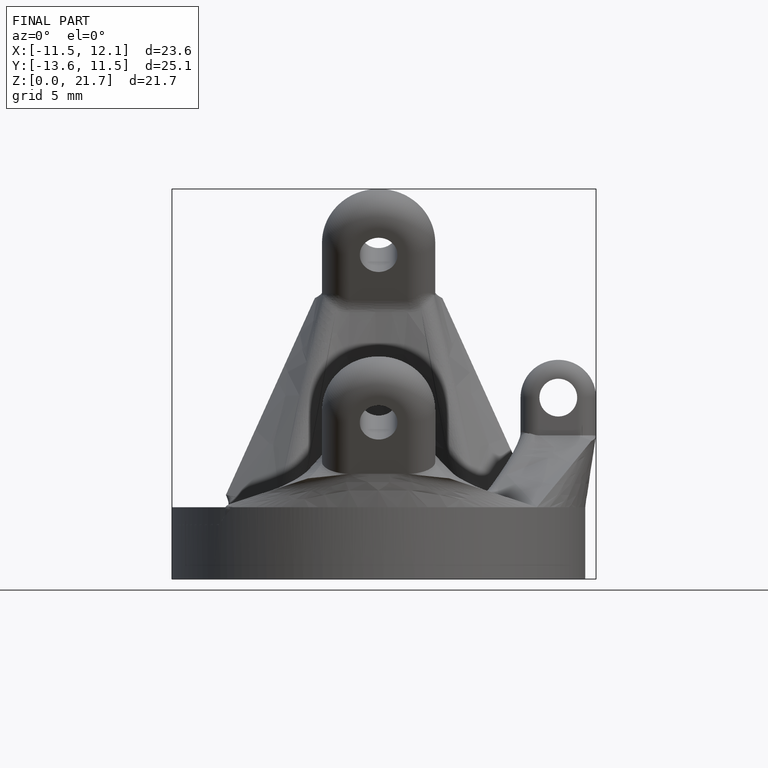
[diagram: finished part — front view with bounding-box wireframe]
